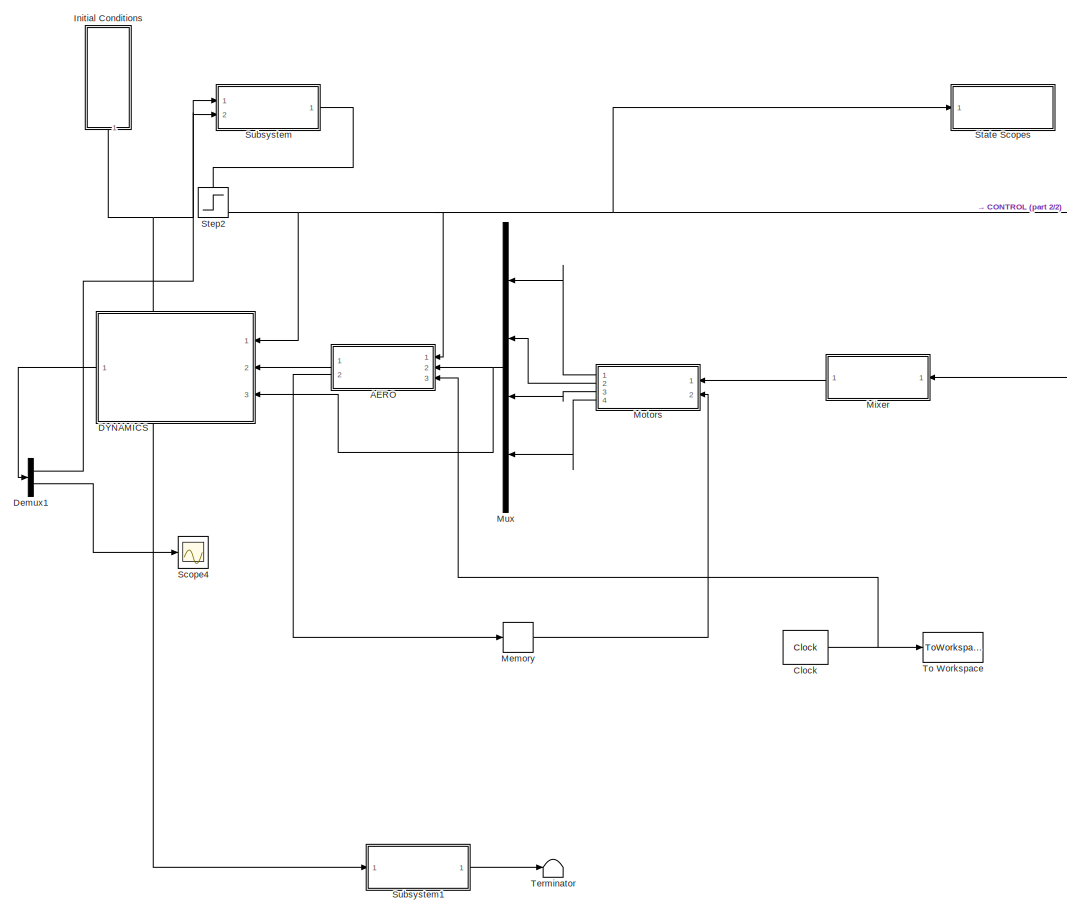
[diagram: root canvas - part 1/2, center side, full height]
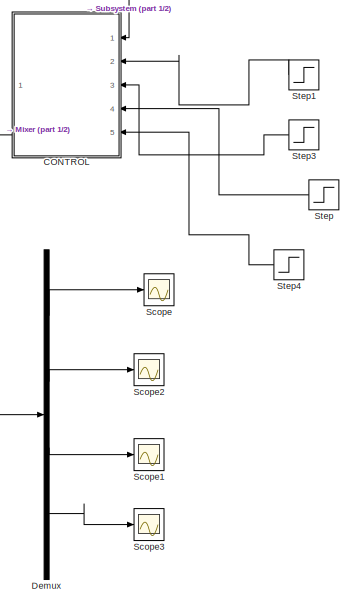
[diagram: root canvas - part 2/2, middle right region]
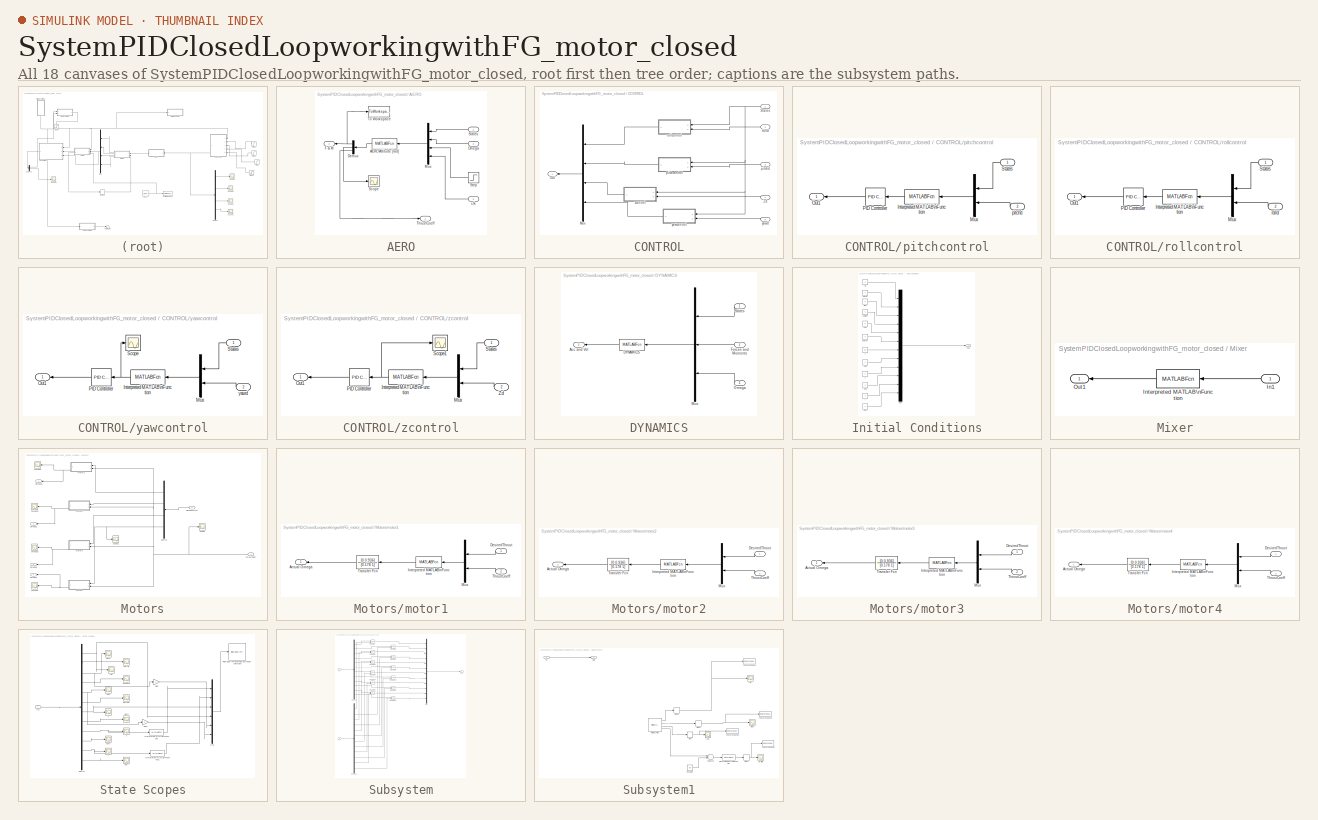
[diagram: thumbnail index - all 18 canvases of the model, root first then tree order]
MODEL SystemPIDClosedLoopworkingwithFG_motor_closed
KIND model
BLOCK [SubSystem] AERO
  FunctionWithSeparateData = off
  MaskHideContents = off
  MinAlgLoopOccurrences = off
  Opaque = off
  Ports = [3, 2]
  PropExecContextOutsideSubsystem = off
  RTWSystemCode = Auto
  RequestExecContextInheritance = off
  SID = 9
BLOCK [MATLABFcn] AERO/AERO Attitude [rad]
  MATLABFcn = aero
  OutputDimensions = 26
  Ports = [1, 1]
  SID = 17
BLOCK [Demux] AERO/Demux
  DisplayOption = bar
  Outputs = [24 1 1]
  Ports = [1, 3]
  SID = 403
BLOCK [Outport] AERO/F & M
  IconDisplay = Port number
  SID = 18
BLOCK [Mux] AERO/Mux
  DisplayOption = bar
  Ports = [4, 1]
  SID = 12
BLOCK [Inport] AERO/Omega
  IconDisplay = Port number
  Port = 2
  SID = 14
BLOCK [Scope] AERO/Scope
  DataFormat = StructureWithTime
  Floating = off
  LimitDataPoints = off
  NumInputPorts = 1
  Ports = [1]
  SID = 404
  SampleTime = 0
  SaveName = ScopeData5
BLOCK [Inport] AERO/States
  IconDisplay = Port number
  SID = 13
BLOCK [Step] AERO/Step
  After = 4
  Before = 4
  SID = 15
  SampleTime = 0
  Time = 0
BLOCK [Outport] AERO/ThrustCoeff
  IconDisplay = Port number
  Port = 2
  SID = 411
BLOCK [ToWorkspace] AERO/To Workspace
  MaxDataPoints = inf
  Ports = [1]
  SID = 330
  SampleTime = -1
  SaveFormat = Structure
  VariableName = FandM
BLOCK [Inport] AERO/clk
  IconDisplay = Port number
  Port = 3
  SID = 271
BLOCK [SubSystem] CONTROL
  AttributesFormatString = %<Priority>
  FunctionWithSeparateData = off
  MaskHideContents = off
  MinAlgLoopOccurrences = off
  Opaque = off
  Ports = [5, 1]
  PropExecContextOutsideSubsystem = off
  RTWSystemCode = Auto
  RequestExecContextInheritance = off
  SID = 29
BLOCK [Mux] CONTROL/Mux
  DisplayOption = bar
  Ports = [4, 1]
  SID = 102
BLOCK [Outport] CONTROL/Out
  IconDisplay = Port number
  SID = 101
BLOCK [Inport] CONTROL/States
  IconDisplay = Port number
  SID = 32
BLOCK [Inport] CONTROL/Zd
  IconDisplay = Port number
  Port = 4
  SID = 35
BLOCK [SubSystem] CONTROL/pitchcontrol
  FunctionWithSeparateData = off
  MaskHideContents = off
  MinAlgLoopOccurrences = off
  Opaque = off
  Ports = [2, 1]
  PropExecContextOutsideSubsystem = off
  RTWSystemCode = Auto
  RequestExecContextInheritance = off
  SID = 80
BLOCK [MATLABFcn] CONTROL/pitchcontrol/Interpreted MATLAB\nFunction
  MATLABFcn = pitcherr
  OutputDimensions = 1
  Ports = [1, 1]
  SID = 83
BLOCK [Mux] CONTROL/pitchcontrol/Mux
  DisplayOption = bar
  Inputs = 2
  Ports = [2, 1]
  SID = 84
BLOCK [Outport] CONTROL/pitchcontrol/Out1
  IconDisplay = Port number
  SID = 86
BLOCK [Reference] CONTROL/pitchcontrol/PID Controller  REF=simulink/Continuous/PID Controller
  AntiWindupMode = none
  Controller = PID
  D = 0.025
  DOutDataTypeStr = Inherit: Inherit via internal rule
  DOutMax = []
  DOutMin = []
  DParamDataTypeStr = Inherit: Inherit via internal rule
  DParamMax = []
  DParamMin = []
  ExternalReset = none
  FilterContinuousStateAttributes = ''
  FilterMethod = Forward Euler
  FilterOutDataTypeStr = Inherit: Inherit via internal rule
  FilterOutMax = []
  FilterOutMin = []
  FilterRTWStateStorageClass = Auto
  FilterStateMustResolveToSignalObject = off
  Form = Parallel
  FunctionWithSeparateData = off
  GeneratePreprocessorConditionals = off
  I = 0
  IOutDataTypeStr = Inherit: Inherit via internal rule
  IOutMax = []
  IOutMin = []
  IParamDataTypeStr = Inherit: Inherit via internal rule
  IParamMax = []
  IParamMin = []
  IgnoreLimit = off
  InitialConditionForFilter = 0
  InitialConditionForIntegrator = 0
  InitialConditionSource = internal
  IntegratorContinuousStateAttributes = ''
  IntegratorMethod = Forward Euler
  IntegratorOutDataTypeStr = Inherit: Inherit via internal rule
  IntegratorOutMax = []
  IntegratorOutMin = []
  IntegratorRTWStateStorageClass = Auto
  IntegratorStateMustResolveToSignalObject = off
  Kb = 1
  KbOutDataTypeStr = Inherit: Inherit via internal rule
  KbOutMax = []
  KbOutMin = []
  KbParamDataTypeStr = Inherit: Inherit via internal rule
  KbParamMax = []
  KbParamMin = []
  Kt = 1
  KtOutDataTypeStr = Inherit: Inherit via internal rule
  KtOutMax = []
  KtOutMin = []
  KtParamDataTypeStr = Inherit: Inherit via internal rule
  KtParamMax = []
  KtParamMin = []
  LimitOutput = off
  LinearizeAsGain = off
  LockScale = off
  LowerSaturationLimit = -inf
  N = 25
  NOutDataTypeStr = Inherit: Inherit via internal rule
  NOutMax = []
  NOutMin = []
  NParamDataTypeStr = Inherit: Inherit via internal rule
  NParamMax = []
  NParamMin = []
  P = 0.005
  POutDataTypeStr = Inherit: Inherit via internal rule
  POutMax = []
  POutMin = []
  PParamDataTypeStr = Inherit: Inherit via internal rule
  PParamMax = []
  PParamMin = []
  Ports = [1, 1]
  RTWMemSecDataConstants = Inherit from model
  RTWMemSecDataInternal = Inherit from model
  RTWMemSecDataParameters = Inherit from model
  RTWMemSecFuncExecute = Inherit from model
  RTWMemSecFuncInitTerm = Inherit from model
  RndMeth = Floor
  SID = 85
  SampleTime = 1
  SaturateOnIntegerOverflow = off
  SaturationOutDataTypeStr = Inherit: Same as input
  SaturationOutMax = []
  SaturationOutMin = []
  ShowPortLabels = FromPortIcon
  SourceBlock = simulink/Continuous/PID Controller
  SourceType = PID 1dof
  SumAccumDataTypeStr = Inherit: Inherit via internal rule
  SumDAccumDataTypeStr = Inherit: Inherit via internal rule
  SumDOutDataTypeStr = Inherit: Inherit via internal rule
  SumDOutMax = []
  SumDOutMin = []
  SumI1AccumDataTypeStr = Inherit: Inherit via internal rule
  SumI1OutDataTypeStr = Inherit: Inherit via internal rule
  SumI1OutMax = []
  SumI1OutMin = []
  SumI2AccumDataTypeStr = Inherit: Inherit via internal rule
  SumI2OutDataTypeStr = Inherit: Inherit via internal rule
  SumI2OutMax = []
  SumI2OutMin = []
  SumI3AccumDataTypeStr = Inherit: Inherit via internal rule
  SumI3OutDataTypeStr = Inherit: Inherit via internal rule
  SumI3OutMax = []
  SumI3OutMin = []
  SumOutDataTypeStr = Inherit: Inherit via internal rule
  SumOutMax = []
  SumOutMin = []
  SystemSampleTime = -1
  TimeDomain = Continuous-time
  TrackingMode = off
  UpperSaturationLimit = inf
  ZeroCross = on
BLOCK [Inport] CONTROL/pitchcontrol/States
  IconDisplay = Port number
  SID = 81
BLOCK [Inport] CONTROL/pitchcontrol/pitchd
  IconDisplay = Port number
  Port = 2
  SID = 82
BLOCK [Inport] CONTROL/pitchd
  IconDisplay = Port number
  Port = 3
  SID = 34
BLOCK [SubSystem] CONTROL/rollcontrol
  FunctionWithSeparateData = off
  MaskHideContents = off
  MinAlgLoopOccurrences = off
  Opaque = off
  Ports = [2, 1]
  PropExecContextOutsideSubsystem = off
  RTWSystemCode = Auto
  RequestExecContextInheritance = off
  SID = 73
BLOCK [MATLABFcn] CONTROL/rollcontrol/Interpreted MATLAB\nFunction
  MATLABFcn = rollerr
  OutputDimensions = 1
  Ports = [1, 1]
  SID = 77
BLOCK [Mux] CONTROL/rollcontrol/Mux
  DisplayOption = bar
  Inputs = 2
  Ports = [2, 1]
  SID = 78
BLOCK [Outport] CONTROL/rollcontrol/Out1
  IconDisplay = Port number
  SID = 75
BLOCK [Reference] CONTROL/rollcontrol/PID Controller  REF=simulink/Continuous/PID Controller
  AntiWindupMode = none
  Controller = PID
  D = .025
  DOutDataTypeStr = Inherit: Inherit via internal rule
  DOutMax = []
  DOutMin = []
  DParamDataTypeStr = Inherit: Inherit via internal rule
  DParamMax = []
  DParamMin = []
  ExternalReset = none
  FilterContinuousStateAttributes = ''
  FilterMethod = Forward Euler
  FilterOutDataTypeStr = Inherit: Inherit via internal rule
  FilterOutMax = []
  FilterOutMin = []
  FilterRTWStateStorageClass = Auto
  FilterStateMustResolveToSignalObject = off
  Form = Parallel
  FunctionWithSeparateData = off
  GeneratePreprocessorConditionals = off
  I = 0
  IOutDataTypeStr = Inherit: Inherit via internal rule
  IOutMax = []
  IOutMin = []
  IParamDataTypeStr = Inherit: Inherit via internal rule
  IParamMax = []
  IParamMin = []
  IgnoreLimit = off
  InitialConditionForFilter = 0
  InitialConditionForIntegrator = 0
  InitialConditionSource = internal
  IntegratorContinuousStateAttributes = ''
  IntegratorMethod = Forward Euler
  IntegratorOutDataTypeStr = Inherit: Inherit via internal rule
  IntegratorOutMax = []
  IntegratorOutMin = []
  IntegratorRTWStateStorageClass = Auto
  IntegratorStateMustResolveToSignalObject = off
  Kb = 1
  KbOutDataTypeStr = Inherit: Inherit via internal rule
  KbOutMax = []
  KbOutMin = []
  KbParamDataTypeStr = Inherit: Inherit via internal rule
  KbParamMax = []
  KbParamMin = []
  Kt = 1
  KtOutDataTypeStr = Inherit: Inherit via internal rule
  KtOutMax = []
  KtOutMin = []
  KtParamDataTypeStr = Inherit: Inherit via internal rule
  KtParamMax = []
  KtParamMin = []
  LimitOutput = off
  LinearizeAsGain = off
  LockScale = off
  LowerSaturationLimit = -inf
  N = 25
  NOutDataTypeStr = Inherit: Inherit via internal rule
  NOutMax = []
  NOutMin = []
  NParamDataTypeStr = Inherit: Inherit via internal rule
  NParamMax = []
  NParamMin = []
  P = .005
  POutDataTypeStr = Inherit: Inherit via internal rule
  POutMax = []
  POutMin = []
  PParamDataTypeStr = Inherit: Inherit via internal rule
  PParamMax = []
  PParamMin = []
  Ports = [1, 1]
  RTWMemSecDataConstants = Inherit from model
  RTWMemSecDataInternal = Inherit from model
  RTWMemSecDataParameters = Inherit from model
  RTWMemSecFuncExecute = Inherit from model
  RTWMemSecFuncInitTerm = Inherit from model
  RndMeth = Floor
  SID = 79
  SampleTime = 1
  SaturateOnIntegerOverflow = off
  SaturationOutDataTypeStr = Inherit: Same as input
  SaturationOutMax = []
  SaturationOutMin = []
  ShowPortLabels = FromPortIcon
  SourceBlock = simulink/Continuous/PID Controller
  SourceType = PID 1dof
  SumAccumDataTypeStr = Inherit: Inherit via internal rule
  SumDAccumDataTypeStr = Inherit: Inherit via internal rule
  SumDOutDataTypeStr = Inherit: Inherit via internal rule
  SumDOutMax = []
  SumDOutMin = []
  SumI1AccumDataTypeStr = Inherit: Inherit via internal rule
  SumI1OutDataTypeStr = Inherit: Inherit via internal rule
  SumI1OutMax = []
  SumI1OutMin = []
  SumI2AccumDataTypeStr = Inherit: Inherit via internal rule
  SumI2OutDataTypeStr = Inherit: Inherit via internal rule
  SumI2OutMax = []
  SumI2OutMin = []
  SumI3AccumDataTypeStr = Inherit: Inherit via internal rule
  SumI3OutDataTypeStr = Inherit: Inherit via internal rule
  SumI3OutMax = []
  SumI3OutMin = []
  SumOutDataTypeStr = Inherit: Inherit via internal rule
  SumOutMax = []
  SumOutMin = []
  SystemSampleTime = -1
  TimeDomain = Continuous-time
  TrackingMode = off
  UpperSaturationLimit = inf
  ZeroCross = on
BLOCK [Inport] CONTROL/rollcontrol/States
  IconDisplay = Port number
  SID = 74
BLOCK [Inport] CONTROL/rollcontrol/rolld
  IconDisplay = Port number
  Port = 2
  SID = 76
BLOCK [Inport] CONTROL/rolld
  IconDisplay = Port number
  Port = 2
  SID = 33
BLOCK [SubSystem] CONTROL/yawcontrol
  FunctionWithSeparateData = off
  MaskHideContents = off
  MinAlgLoopOccurrences = off
  Opaque = off
  Ports = [2, 1]
  PropExecContextOutsideSubsystem = off
  RTWSystemCode = Auto
  RequestExecContextInheritance = off
  SID = 87
BLOCK [MATLABFcn] CONTROL/yawcontrol/Interpreted MATLAB\nFunction
  MATLABFcn = yawerr
  OutputDimensions = 1
  Ports = [1, 1]
  SID = 90
BLOCK [Mux] CONTROL/yawcontrol/Mux
  DisplayOption = bar
  Inputs = 2
  Ports = [2, 1]
  SID = 91
BLOCK [Outport] CONTROL/yawcontrol/Out1
  IconDisplay = Port number
  SID = 93
BLOCK [Reference] CONTROL/yawcontrol/PID Controller  REF=simulink/Continuous/PID Controller
  AntiWindupMode = none
  Controller = PID
  D = 0.25
  DOutDataTypeStr = Inherit: Inherit via internal rule
  DOutMax = []
  DOutMin = []
  DParamDataTypeStr = Inherit: Inherit via internal rule
  DParamMax = []
  DParamMin = []
  ExternalReset = none
  FilterContinuousStateAttributes = ''
  FilterMethod = Forward Euler
  FilterOutDataTypeStr = Inherit: Inherit via internal rule
  FilterOutMax = []
  FilterOutMin = []
  FilterRTWStateStorageClass = Auto
  FilterStateMustResolveToSignalObject = off
  Form = Parallel
  FunctionWithSeparateData = off
  GeneratePreprocessorConditionals = off
  I = 0
  IOutDataTypeStr = Inherit: Inherit via internal rule
  IOutMax = []
  IOutMin = []
  IParamDataTypeStr = Inherit: Inherit via internal rule
  IParamMax = []
  IParamMin = []
  IgnoreLimit = off
  InitialConditionForFilter = 0
  InitialConditionForIntegrator = 0
  InitialConditionSource = internal
  IntegratorContinuousStateAttributes = ''
  IntegratorMethod = Forward Euler
  IntegratorOutDataTypeStr = Inherit: Inherit via internal rule
  IntegratorOutMax = []
  IntegratorOutMin = []
  IntegratorRTWStateStorageClass = Auto
  IntegratorStateMustResolveToSignalObject = off
  Kb = 1
  KbOutDataTypeStr = Inherit: Inherit via internal rule
  KbOutMax = []
  KbOutMin = []
  KbParamDataTypeStr = Inherit: Inherit via internal rule
  KbParamMax = []
  KbParamMin = []
  Kt = 1
  KtOutDataTypeStr = Inherit: Inherit via internal rule
  KtOutMax = []
  KtOutMin = []
  KtParamDataTypeStr = Inherit: Inherit via internal rule
  KtParamMax = []
  KtParamMin = []
  LimitOutput = off
  LinearizeAsGain = off
  LockScale = off
  LowerSaturationLimit = -inf
  N = 25
  NOutDataTypeStr = Inherit: Inherit via internal rule
  NOutMax = []
  NOutMin = []
  NParamDataTypeStr = Inherit: Inherit via internal rule
  NParamMax = []
  NParamMin = []
  P = 0.05
  POutDataTypeStr = Inherit: Inherit via internal rule
  POutMax = []
  POutMin = []
  PParamDataTypeStr = Inherit: Inherit via internal rule
  PParamMax = []
  PParamMin = []
  Ports = [1, 1]
  RTWMemSecDataConstants = Inherit from model
  RTWMemSecDataInternal = Inherit from model
  RTWMemSecDataParameters = Inherit from model
  RTWMemSecFuncExecute = Inherit from model
  RTWMemSecFuncInitTerm = Inherit from model
  RndMeth = Floor
  SID = 92
  SampleTime = 1
  SaturateOnIntegerOverflow = off
  SaturationOutDataTypeStr = Inherit: Same as input
  SaturationOutMax = []
  SaturationOutMin = []
  ShowPortLabels = FromPortIcon
  SourceBlock = simulink/Continuous/PID Controller
  SourceType = PID 1dof
  SumAccumDataTypeStr = Inherit: Inherit via internal rule
  SumDAccumDataTypeStr = Inherit: Inherit via internal rule
  SumDOutDataTypeStr = Inherit: Inherit via internal rule
  SumDOutMax = []
  SumDOutMin = []
  SumI1AccumDataTypeStr = Inherit: Inherit via internal rule
  SumI1OutDataTypeStr = Inherit: Inherit via internal rule
  SumI1OutMax = []
  SumI1OutMin = []
  SumI2AccumDataTypeStr = Inherit: Inherit via internal rule
  SumI2OutDataTypeStr = Inherit: Inherit via internal rule
  SumI2OutMax = []
  SumI2OutMin = []
  SumI3AccumDataTypeStr = Inherit: Inherit via internal rule
  SumI3OutDataTypeStr = Inherit: Inherit via internal rule
  SumI3OutMax = []
  SumI3OutMin = []
  SumOutDataTypeStr = Inherit: Inherit via internal rule
  SumOutMax = []
  SumOutMin = []
  SystemSampleTime = -1
  TimeDomain = Continuous-time
  TrackingMode = off
  UpperSaturationLimit = inf
  ZeroCross = on
BLOCK [Scope] CONTROL/yawcontrol/Scope
  DataFormat = StructureWithTime
  Floating = off
  NumInputPorts = 1
  Ports = [1]
  SID = 171
  SampleTime = 0
  SaveName = ScopeData17
BLOCK [Inport] CONTROL/yawcontrol/States
  IconDisplay = Port number
  SID = 88
BLOCK [Inport] CONTROL/yawcontrol/yawd
  IconDisplay = Port number
  Port = 2
  SID = 89
BLOCK [Inport] CONTROL/yawd
  IconDisplay = Port number
  Port = 5
  SID = 36
BLOCK [SubSystem] CONTROL/zcontrol
  FunctionWithSeparateData = off
  MaskHideContents = off
  MinAlgLoopOccurrences = off
  Opaque = off
  Ports = [2, 1]
  PropExecContextOutsideSubsystem = off
  RTWSystemCode = Auto
  RequestExecContextInheritance = off
  SID = 94
BLOCK [MATLABFcn] CONTROL/zcontrol/Interpreted MATLAB\nFunction
  MATLABFcn = zerr
  OutputDimensions = 1
  Ports = [1, 1]
  SID = 97
BLOCK [Mux] CONTROL/zcontrol/Mux
  DisplayOption = bar
  Inputs = 2
  Ports = [2, 1]
  SID = 98
BLOCK [Outport] CONTROL/zcontrol/Out1
  IconDisplay = Port number
  SID = 100
BLOCK [Reference] CONTROL/zcontrol/PID Controller  REF=simulink/Continuous/PID Controller
  AntiWindupMode = clamping
  Controller = PID
  D = 4
  DOutDataTypeStr = Inherit: Inherit via internal rule
  DOutMax = []
  DOutMin = []
  DParamDataTypeStr = Inherit: Inherit via internal rule
  DParamMax = []
  DParamMin = []
  ExternalReset = none
  FilterContinuousStateAttributes = ''
  FilterMethod = Forward Euler
  FilterOutDataTypeStr = Inherit: Inherit via internal rule
  FilterOutMax = []
  FilterOutMin = []
  FilterRTWStateStorageClass = Auto
  FilterStateMustResolveToSignalObject = off
  Form = Parallel
  FunctionWithSeparateData = off
  GeneratePreprocessorConditionals = off
  I = 2
  IOutDataTypeStr = Inherit: Inherit via internal rule
  IOutMax = []
  IOutMin = []
  IParamDataTypeStr = Inherit: Inherit via internal rule
  IParamMax = []
  IParamMin = []
  IgnoreLimit = off
  InitialConditionForFilter = 0
  InitialConditionForIntegrator = 0
  InitialConditionSource = internal
  IntegratorContinuousStateAttributes = ''
  IntegratorMethod = Forward Euler
  IntegratorOutDataTypeStr = Inherit: Inherit via internal rule
  IntegratorOutMax = []
  IntegratorOutMin = []
  IntegratorRTWStateStorageClass = Auto
  IntegratorStateMustResolveToSignalObject = off
  Kb = 1
  KbOutDataTypeStr = Inherit: Inherit via internal rule
  KbOutMax = []
  KbOutMin = []
  KbParamDataTypeStr = Inherit: Inherit via internal rule
  KbParamMax = []
  KbParamMin = []
  Kt = 1
  KtOutDataTypeStr = Inherit: Inherit via internal rule
  KtOutMax = []
  KtOutMin = []
  KtParamDataTypeStr = Inherit: Inherit via internal rule
  KtParamMax = []
  KtParamMin = []
  LimitOutput = off
  LinearizeAsGain = off
  LockScale = off
  LowerSaturationLimit = -100
  N = 25
  NOutDataTypeStr = Inherit: Inherit via internal rule
  NOutMax = []
  NOutMin = []
  NParamDataTypeStr = Inherit: Inherit via internal rule
  NParamMax = []
  NParamMin = []
  P = 5
  POutDataTypeStr = Inherit: Inherit via internal rule
  POutMax = []
  POutMin = []
  PParamDataTypeStr = Inherit: Inherit via internal rule
  PParamMax = []
  PParamMin = []
  Ports = [1, 1]
  RTWMemSecDataConstants = Inherit from model
  RTWMemSecDataInternal = Inherit from model
  RTWMemSecDataParameters = Inherit from model
  RTWMemSecFuncExecute = Inherit from model
  RTWMemSecFuncInitTerm = Inherit from model
  RndMeth = Floor
  SID = 99
  SampleTime = 1
  SaturateOnIntegerOverflow = off
  SaturationOutDataTypeStr = Inherit: Same as input
  SaturationOutMax = []
  SaturationOutMin = []
  ShowPortLabels = FromPortIcon
  SourceBlock = simulink/Continuous/PID Controller
  SourceType = PID 1dof
  SumAccumDataTypeStr = Inherit: Inherit via internal rule
  SumDAccumDataTypeStr = Inherit: Inherit via internal rule
  SumDOutDataTypeStr = Inherit: Inherit via internal rule
  SumDOutMax = []
  SumDOutMin = []
  SumI1AccumDataTypeStr = Inherit: Inherit via internal rule
  SumI1OutDataTypeStr = Inherit: Inherit via internal rule
  SumI1OutMax = []
  SumI1OutMin = []
  SumI2AccumDataTypeStr = Inherit: Inherit via internal rule
  SumI2OutDataTypeStr = Inherit: Inherit via internal rule
  SumI2OutMax = []
  SumI2OutMin = []
  SumI3AccumDataTypeStr = Inherit: Inherit via internal rule
  SumI3OutDataTypeStr = Inherit: Inherit via internal rule
  SumI3OutMax = []
  SumI3OutMin = []
  SumOutDataTypeStr = Inherit: Inherit via internal rule
  SumOutMax = []
  SumOutMin = []
  SystemSampleTime = -1
  TimeDomain = Continuous-time
  TrackingMode = off
  UpperSaturationLimit = 900
  ZeroCross = on
BLOCK [Scope] CONTROL/zcontrol/Scope1
  DataFormat = StructureWithTime
  Floating = off
  LimitDataPoints = off
  NumInputPorts = 1
  Ports = [1]
  SID = 429
  SampleTime = 0
  SaveName = ScopeData24
  YMax = 30
  YMin = -30
BLOCK [Inport] CONTROL/zcontrol/States
  IconDisplay = Port number
  SID = 95
BLOCK [Inport] CONTROL/zcontrol/Zd
  IconDisplay = Port number
  Port = 2
  SID = 96
BLOCK [Clock] Clock
  Decimation = 1
  DisplayTime = on
  SID = 269
BLOCK [SubSystem] DYNAMICS
  FunctionWithSeparateData = off
  MaskHideContents = off
  MinAlgLoopOccurrences = off
  Opaque = off
  Ports = [3, 1]
  PropExecContextOutsideSubsystem = off
  RTWSystemCode = Auto
  RequestExecContextInheritance = off
  SID = 1
BLOCK [Outport] DYNAMICS/Acc and Vel
  IconDisplay = Port number
  SID = 3
BLOCK [MATLABFcn] DYNAMICS/DYNAMICS
  MATLABFcn = plantdynamics
  OutputDimensions = 13
  Ports = [1, 1]
  SID = 8
BLOCK [Inport] DYNAMICS/Forces and Moments
  IconDisplay = Port number
  Port = 2
  SID = 6
BLOCK [Mux] DYNAMICS/Mux
  DisplayOption = bar
  Inputs = 3
  Ports = [3, 1]
  SID = 4
BLOCK [Inport] DYNAMICS/Omega
  IconDisplay = Port number
  Port = 3
  SID = 7
BLOCK [Inport] DYNAMICS/States
  IconDisplay = Port number
  SID = 5
BLOCK [Demux] Demux
  DisplayOption = bar
  Ports = [1, 4]
  SID = 113
BLOCK [Demux] Demux1
  DisplayOption = bar
  Outputs = [12 1]
  Ports = [1, 2]
  SID = 137
BLOCK [SubSystem] Initial Conditions
  FunctionWithSeparateData = off
  MaskHideContents = off
  MinAlgLoopOccurrences = off
  Opaque = off
  Ports = [0, 1]
  PropExecContextOutsideSubsystem = off
  RTWSystemCode = Auto
  RequestExecContextInheritance = off
  SID = 45
BLOCK [Mux] Initial Conditions/Mux
  DisplayOption = bar
  Inputs = 12
  Ports = [12, 1]
  SID = 48
BLOCK [Outport] Initial Conditions/Out1
  IconDisplay = Port number
  SID = 47
BLOCK [Constant] Initial Conditions/dotpitch
  SID = 53
  Value = 0
BLOCK [Constant] Initial Conditions/dotroll
  SID = 51
  Value = 0
BLOCK [Constant] Initial Conditions/dotx
  SID = 59
  Value = 0
BLOCK [Constant] Initial Conditions/doty
  SID = 50
  Value = 0
BLOCK [Constant] Initial Conditions/dotyaw
  SID = 55
  Value = 0
BLOCK [Constant] Initial Conditions/dotz
  SID = 57
  Value = 0
BLOCK [Constant] Initial Conditions/pitch
  SID = 52
  Value = 0
BLOCK [Constant] Initial Conditions/roll
  SID = 49
  Value = 0
BLOCK [Constant] Initial Conditions/x
  SID = 58
  Value = 0
BLOCK [Constant] Initial Conditions/y
  SID = 60
  Value = 0
BLOCK [Constant] Initial Conditions/yaw
  SID = 54
  Value = 0
BLOCK [Constant] Initial Conditions/z
  SID = 56
  Value = -45
BLOCK [Memory] Memory
  InheritSampleTime = on
  SID = 413
  X0 = 3.1751e-5
BLOCK [SubSystem] Mixer
  FunctionWithSeparateData = off
  MaskHideContents = off
  MinAlgLoopOccurrences = off
  Opaque = off
  Ports = [1, 1]
  PropExecContextOutsideSubsystem = off
  RTWSystemCode = Auto
  RequestExecContextInheritance = off
  SID = 103
BLOCK [Inport] Mixer/In1
  IconDisplay = Port number
  SID = 104
BLOCK [MATLABFcn] Mixer/Interpreted MATLAB\nFunction
  MATLABFcn = mix
  OutputDimensions = 4
  Ports = [1, 1]
  SID = 106
BLOCK [Outport] Mixer/Out1
  IconDisplay = Port number
  SID = 105
BLOCK [SubSystem] Motors
  FunctionWithSeparateData = off
  MaskHideContents = off
  MinAlgLoopOccurrences = off
  Opaque = off
  Ports = [2, 4]
  PropExecContextOutsideSubsystem = off
  RTWSystemCode = Auto
  RequestExecContextInheritance = off
  SID = 345
BLOCK [Demux] Motors/Demux
  DisplayOption = bar
  Ports = [1, 4]
  SID = 348
BLOCK [Inport] Motors/DesiredThrust
  IconDisplay = Port number
  SID = 346
BLOCK [Outport] Motors/Omega1
  IconDisplay = Port number
  SID = 424
BLOCK [Outport] Motors/Omega2
  IconDisplay = Port number
  Port = 2
  SID = 425
BLOCK [Outport] Motors/Omega3
  IconDisplay = Port number
  Port = 3
  SID = 426
BLOCK [Outport] Motors/Omega4
  IconDisplay = Port number
  Port = 4
  SID = 427
BLOCK [Scope] Motors/Scope
  DataFormat = StructureWithTime
  Floating = off
  LimitDataPoints = off
  NumInputPorts = 1
  Ports = [1]
  SID = 419
  SampleTime = 0
  SaveName = ScopeData7
BLOCK [Scope] Motors/Scope1
  DataFormat = StructureWithTime
  Floating = off
  LimitDataPoints = off
  NumInputPorts = 1
  Ports = [1]
  SID = 431
  SampleTime = 0
  SaveName = ScopeData26
BLOCK [Inport] Motors/ThrustCOeff
  IconDisplay = Port number
  Port = 2
  SID = 412
BLOCK [SubSystem] Motors/motor1
  FunctionWithSeparateData = off
  MaskHideContents = off
  MinAlgLoopOccurrences = off
  Opaque = off
  Ports = [2, 1]
  PropExecContextOutsideSubsystem = off
  RTWSystemCode = Auto
  RequestExecContextInheritance = off
  SID = 351
BLOCK [Outport] Motors/motor1/Actual Omega
  IconDisplay = Port number
  SID = 357
BLOCK [Inport] Motors/motor1/DesiredThrust
  IconDisplay = Port number
  SID = 353
BLOCK [MATLABFcn] Motors/motor1/Interpreted MATLAB\nFunction
  MATLABFcn = motor1
  Ports = [1, 1]
  SID = 355
BLOCK [Mux] Motors/motor1/Mux
  DisplayOption = bar
  Inputs = 2
  Ports = [2, 1]
  SID = 356
BLOCK [Inport] Motors/motor1/ThrustCoeff
  IconDisplay = Port number
  Port = 2
  SID = 414
BLOCK [TransferFcn] Motors/motor1/Transfer Fcn
  Denominator = [0.178 1]
  Numerator = [0 0.936]
  SID = 420
BLOCK [SubSystem] Motors/motor2
  FunctionWithSeparateData = off
  MaskHideContents = off
  MinAlgLoopOccurrences = off
  Opaque = off
  Ports = [2, 1]
  PropExecContextOutsideSubsystem = off
  RTWSystemCode = Auto
  RequestExecContextInheritance = off
  SID = 361
BLOCK [Outport] Motors/motor2/Actual Omega
  IconDisplay = Port number
  SID = 367
BLOCK [Inport] Motors/motor2/DesiredThrust
  IconDisplay = Port number
  SID = 362
BLOCK [MATLABFcn] Motors/motor2/Interpreted MATLAB\nFunction
  MATLABFcn = motor2
  Ports = [1, 1]
  SID = 365
BLOCK [Mux] Motors/motor2/Mux
  DisplayOption = bar
  Inputs = 2
  Ports = [2, 1]
  SID = 366
BLOCK [Inport] Motors/motor2/ThrustCoeff
  IconDisplay = Port number
  Port = 2
  SID = 363
BLOCK [TransferFcn] Motors/motor2/Transfer Fcn
  Denominator = [0.178 1]
  Numerator = [0 0.936]
  SID = 421
BLOCK [SubSystem] Motors/motor3
  FunctionWithSeparateData = off
  MaskHideContents = off
  MinAlgLoopOccurrences = off
  Opaque = off
  Ports = [2, 1]
  PropExecContextOutsideSubsystem = off
  RTWSystemCode = Auto
  RequestExecContextInheritance = off
  SID = 371
BLOCK [Outport] Motors/motor3/Actual Omega
  IconDisplay = Port number
  SID = 377
BLOCK [Inport] Motors/motor3/DesiredThrust
  IconDisplay = Port number
  SID = 372
BLOCK [MATLABFcn] Motors/motor3/Interpreted MATLAB\nFunction
  MATLABFcn = motor3
  Ports = [1, 1]
  SID = 375
BLOCK [Mux] Motors/motor3/Mux
  DisplayOption = bar
  Inputs = 2
  Ports = [2, 1]
  SID = 376
BLOCK [Inport] Motors/motor3/ThrustCoeff
  IconDisplay = Port number
  Port = 2
  SID = 373
BLOCK [TransferFcn] Motors/motor3/Transfer Fcn
  Denominator = [0.178 1]
  Numerator = [0 0.936]
  SID = 422
BLOCK [SubSystem] Motors/motor4
  FunctionWithSeparateData = off
  MaskHideContents = off
  MinAlgLoopOccurrences = off
  Opaque = off
  Ports = [2, 1]
  PropExecContextOutsideSubsystem = off
  RTWSystemCode = Auto
  RequestExecContextInheritance = off
  SID = 381
BLOCK [Outport] Motors/motor4/Actual Omega
  IconDisplay = Port number
  SID = 387
BLOCK [Inport] Motors/motor4/DesiredThrust
  IconDisplay = Port number
  SID = 382
BLOCK [MATLABFcn] Motors/motor4/Interpreted MATLAB\nFunction
  MATLABFcn = motor4
  Ports = [1, 1]
  SID = 385
BLOCK [Mux] Motors/motor4/Mux
  DisplayOption = bar
  Inputs = 2
  Ports = [2, 1]
  SID = 386
BLOCK [Inport] Motors/motor4/ThrustCoeff
  IconDisplay = Port number
  Port = 2
  SID = 383
BLOCK [TransferFcn] Motors/motor4/Transfer Fcn
  Denominator = [0.178 1]
  Numerator = [0 0.936]
  SID = 423
BLOCK [Scope] Motors/omega1
  DataFormat = StructureWithTime
  Floating = off
  LimitDataPoints = off
  NumInputPorts = 1
  Ports = [1]
  SID = 358
  SampleTime = 0
  SaveName = ScopeData9
  YMin = -1
BLOCK [Scope] Motors/omega2
  DataFormat = StructureWithTime
  Floating = off
  LimitDataPoints = off
  NumInputPorts = 1
  Ports = [1]
  SID = 368
  SampleTime = 0
  SaveName = ScopeData11
  YMax = 1
BLOCK [Scope] Motors/omega3
  DataFormat = StructureWithTime
  Floating = off
  LimitDataPoints = off
  NumInputPorts = 1
  Ports = [1]
  SID = 378
  SampleTime = 0
  SaveName = ScopeData18
  YMax = 1
BLOCK [Scope] Motors/omega4
  DataFormat = StructureWithTime
  Floating = off
  LimitDataPoints = off
  NumInputPorts = 1
  Ports = [1]
  SID = 388
  SampleTime = 0
  SaveName = ScopeData20
  YMax = 1
BLOCK [Mux] Mux
  DisplayOption = bar
  Ports = [4, 1]
  SID = 402
BLOCK [Scope] Scope
  DataFormat = StructureWithTime
  Floating = off
  LimitDataPoints = off
  NumInputPorts = 1
  Ports = [1]
  SID = 114
  SampleTime = 0
  YMax = -50
  YMin = -900
BLOCK [Scope] Scope1
  DataFormat = StructureWithTime
  Floating = off
  LimitDataPoints = off
  NumInputPorts = 1
  Ports = [1]
  SID = 115
  SampleTime = 0
  SaveName = ScopeData1
  YMax = 30
  YMin = -30
BLOCK [Scope] Scope2
  DataFormat = StructureWithTime
  Floating = off
  LimitDataPoints = off
  NumInputPorts = 1
  Ports = [1]
  SID = 116
  SampleTime = 0
  SaveName = ScopeData2
BLOCK [Scope] Scope3
  DataFormat = StructureWithTime
  Floating = off
  LimitDataPoints = off
  NumInputPorts = 1
  Ports = [1]
  SID = 117
  SampleTime = 0
  SaveName = ScopeData3
BLOCK [Scope] Scope4
  DataFormat = StructureWithTime
  Floating = off
  LimitDataPoints = off
  NumInputPorts = 1
  Ports = [1]
  SID = 138
  SampleTime = 0
  SaveName = ScopeData4
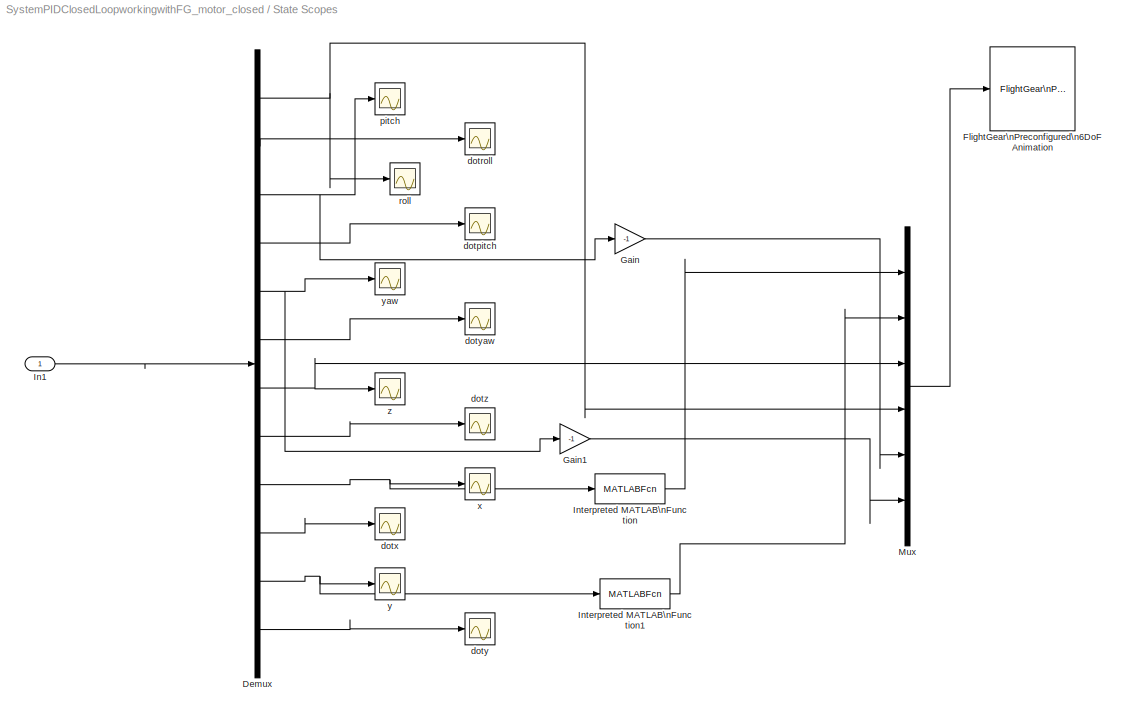
BLOCK [SubSystem] State Scopes
  FunctionWithSeparateData = off
  MaskHideContents = off
  MinAlgLoopOccurrences = off
  Opaque = off
  Ports = [1]
  PropExecContextOutsideSubsystem = off
  RTWSystemCode = Auto
  RequestExecContextInheritance = off
  SID = 146
BLOCK [Demux] State Scopes/Demux
  DisplayOption = bar
  Outputs = 12
  Ports = [1, 12]
  SID = 149
BLOCK [Reference] State Scopes/FlightGear\nPreconfigured\n6DoF Animation  REF=aerolibfltsims/FlightGear\nPreconfigured\n6DoF Animation
  AttributesFormatString = Version Selected: %<xFlightGearVersion>
  DestinationIpAddress = 127.0.0.1
  DestinationPort = 5502
  FunctionWithSeparateData = off
  GeneratePreprocessorConditionals = off
  Ports = [1]
  RTWMemSecDataConstants = Inherit from model
  RTWMemSecDataInternal = Inherit from model
  RTWMemSecDataParameters = Inherit from model
  RTWMemSecFuncExecute = Inherit from model
  RTWMemSecFuncInitTerm = Inherit from model
  SID = 280
  SampleTime = -1
  ShowPortLabels = FromPortIcon
  SourceBlock = aerolibfltsims/FlightGear\nPreconfigured\n6DoF Animation
  SourceType = FlightGearQuick6DoFAnimation
  SystemSampleTime = -1
  xFlightGearVersion = v0.9.8
BLOCK [Gain] State Scopes/Gain
  Gain = -1
  OutDataTypeStr = Inherit: Inherit via internal rule
  ParamDataTypeStr = Inherit: Inherit via internal rule
  SID = 328
  SaturateOnIntegerOverflow = off
BLOCK [Gain] State Scopes/Gain1
  Gain = -1
  OutDataTypeStr = Inherit: Inherit via internal rule
  ParamDataTypeStr = Inherit: Inherit via internal rule
  SID = 329
  SaturateOnIntegerOverflow = off
BLOCK [Inport] State Scopes/In1
  IconDisplay = Port number
  SID = 147
BLOCK [MATLABFcn] State Scopes/Interpreted MATLAB\nFunction
  MATLABFcn = xconversion
  Ports = [1, 1]
  SID = 275
BLOCK [MATLABFcn] State Scopes/Interpreted MATLAB\nFunction1
  MATLABFcn = yconversion
  Ports = [1, 1]
  SID = 277
BLOCK [Mux] State Scopes/Mux
  DisplayOption = bar
  Inputs = 6
  Ports = [6, 1]
  SID = 281
BLOCK [Scope] State Scopes/dotpitch
  DataFormat = StructureWithTime
  Floating = off
  NumInputPorts = 1
  Ports = [1]
  SID = 153
  SampleTime = 0
  SaveName = ScopeData8
BLOCK [Scope] State Scopes/dotroll
  DataFormat = StructureWithTime
  Floating = off
  NumInputPorts = 1
  Ports = [1]
  SID = 151
  SampleTime = 0
  SaveName = ScopeData6
BLOCK [Scope] State Scopes/dotx
  DataFormat = StructureWithTime
  Floating = off
  NumInputPorts = 1
  Ports = [1]
  SID = 159
  SampleTime = 0
  SaveName = ScopeData14
BLOCK [Scope] State Scopes/doty
  DataFormat = StructureWithTime
  Floating = off
  NumInputPorts = 1
  Ports = [1]
  SID = 161
  SampleTime = 0
  SaveName = ScopeData16
BLOCK [Scope] State Scopes/dotyaw
  DataFormat = StructureWithTime
  Floating = off
  NumInputPorts = 1
  Ports = [1]
  SID = 155
  SampleTime = 0
  SaveName = ScopeData10
BLOCK [Scope] State Scopes/dotz
  DataFormat = StructureWithTime
  Floating = off
  LimitDataPoints = off
  NumInputPorts = 1
  Ports = [1]
  SID = 157
  SampleTime = 0
  SaveName = ScopeData12
BLOCK [Scope] State Scopes/pitch
  DataFormat = Array
  Floating = off
  LimitDataPoints = off
  NumInputPorts = 1
  Ports = [1]
  SID = 152
  SampleTime = 0
  SaveName = sc_pitch
  YMax = 0.5
  YMin = -0.5
BLOCK [Scope] State Scopes/roll
  DataFormat = Array
  Floating = off
  LimitDataPoints = off
  NumInputPorts = 1
  Ports = [1]
  SID = 150
  SampleTime = 0
  SaveName = sc_roll
BLOCK [Scope] State Scopes/x
  DataFormat = StructureWithTime
  Floating = off
  LimitDataPoints = off
  NumInputPorts = 1
  Ports = [1]
  SID = 158
  SampleTime = 0
  SaveName = ScopeData13
BLOCK [Scope] State Scopes/y
  DataFormat = StructureWithTime
  Floating = off
  LimitDataPoints = off
  NumInputPorts = 1
  Ports = [1]
  SID = 160
  SampleTime = 0
  SaveName = ScopeData15
  TimeRange = 0.7999999999999972
  YMax = -454.8125
  YMin = -470.8125
BLOCK [Scope] State Scopes/yaw
  DataFormat = Array
  Floating = off
  LimitDataPoints = off
  NumInputPorts = 1
  Ports = [1]
  SID = 154
  SampleTime = 0
  SaveName = sc_yaw
  YMax = 0.1
  YMin = -0.5
BLOCK [Scope] State Scopes/z
  DataFormat = Array
  Floating = off
  LimitDataPoints = off
  NumInputPorts = 1
  Ports = [1]
  SID = 156
  SampleTime = 0
  SaveName = sc_z
  YMax = 3
  YMin = -3
BLOCK [Step] Step
  After = -46
  Before = -45
  SID = 268
  SampleTime = .001
  Time = 10
BLOCK [Step] Step1
  After = 0
  SID = 272
  SampleTime = .001
  Time = 10
BLOCK [Step] Step2
  IOType = siggen
  SID = 260
  SampleTime = 0
BLOCK [Step] Step3
  After = 0
  SID = 273
  SampleTime = .001
  Time = 10
BLOCK [Step] Step4
  After = 0
  SID = 274
  SampleTime = .001
  Time = 10
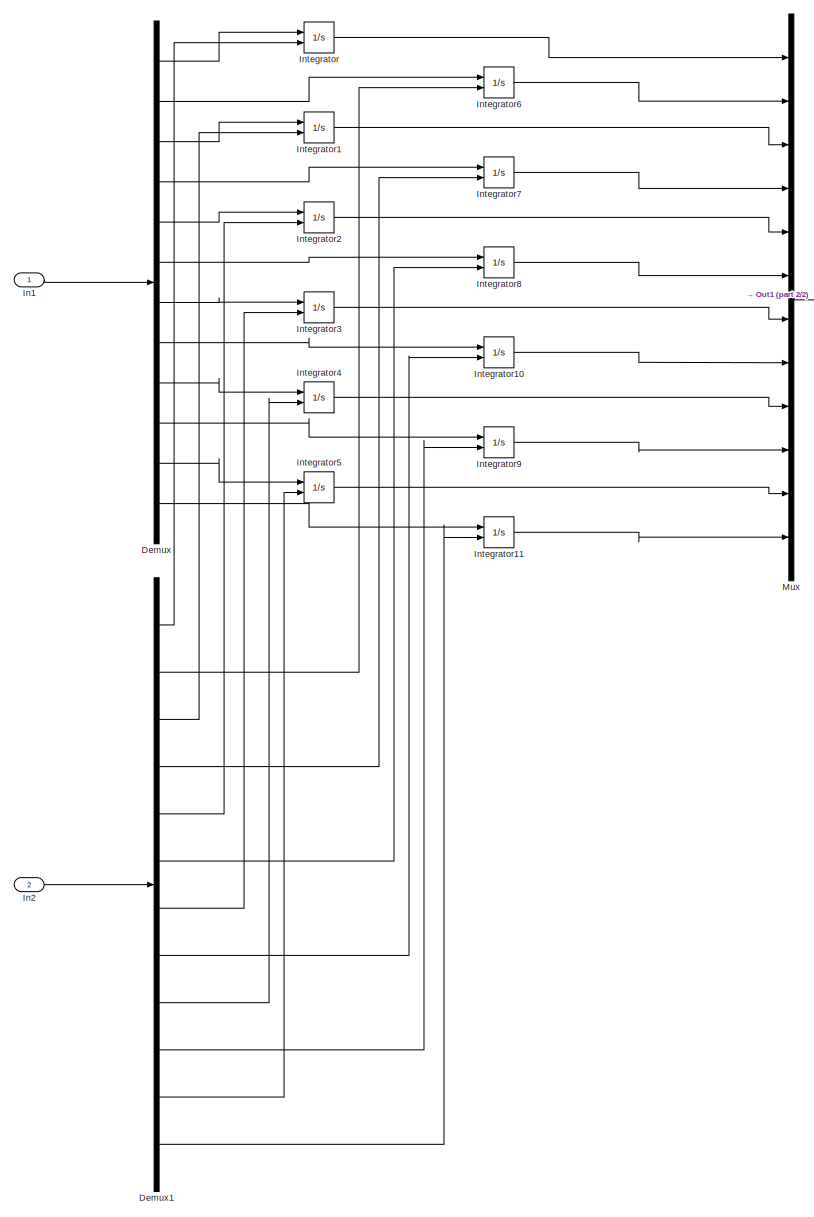
[diagram: Subsystem - part 1/2, center side, full height]
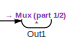
[diagram: Subsystem - part 2/2, top right region]
BLOCK [SubSystem] Subsystem
  FunctionWithSeparateData = off
  MaskHideContents = off
  MinAlgLoopOccurrences = off
  Opaque = off
  Ports = [2, 1]
  PropExecContextOutsideSubsystem = off
  RTWSystemCode = Auto
  RequestExecContextInheritance = off
  SID = 118
BLOCK [Demux] Subsystem/Demux
  DisplayOption = bar
  Outputs = 12
  Ports = [1, 12]
  SID = 122
BLOCK [Demux] Subsystem/Demux1
  DisplayOption = bar
  Outputs = 12
  Ports = [1, 12]
  SID = 123
BLOCK [Inport] Subsystem/In1
  IconDisplay = Port number
  SID = 119
BLOCK [Inport] Subsystem/In2
  IconDisplay = Port number
  Port = 2
  SID = 121
BLOCK [Integrator] Subsystem/Integrator
  InitialConditionSource = external
  Ports = [2, 1]
  SID = 124
BLOCK [Integrator] Subsystem/Integrator1
  InitialConditionSource = external
  Ports = [2, 1]
  SID = 125
BLOCK [Integrator] Subsystem/Integrator10
  InitialConditionSource = external
  Ports = [2, 1]
  SID = 134
BLOCK [Integrator] Subsystem/Integrator11
  InitialConditionSource = external
  Ports = [2, 1]
  SID = 135
BLOCK [Integrator] Subsystem/Integrator2
  InitialConditionSource = external
  Ports = [2, 1]
  SID = 126
BLOCK [Integrator] Subsystem/Integrator3
  InitialConditionSource = external
  Ports = [2, 1]
  SID = 127
BLOCK [Integrator] Subsystem/Integrator4
  InitialConditionSource = external
  Ports = [2, 1]
  SID = 128
BLOCK [Integrator] Subsystem/Integrator5
  InitialConditionSource = external
  Ports = [2, 1]
  SID = 129
BLOCK [Integrator] Subsystem/Integrator6
  InitialConditionSource = external
  Ports = [2, 1]
  SID = 130
BLOCK [Integrator] Subsystem/Integrator7
  InitialConditionSource = external
  Ports = [2, 1]
  SID = 131
BLOCK [Integrator] Subsystem/Integrator8
  InitialConditionSource = external
  Ports = [2, 1]
  SID = 132
BLOCK [Integrator] Subsystem/Integrator9
  InitialConditionSource = external
  Ports = [2, 1]
  SID = 133
BLOCK [Mux] Subsystem/Mux
  DisplayOption = bar
  Inputs = 12
  Ports = [12, 1]
  SID = 136
BLOCK [Outport] Subsystem/Out1
  IconDisplay = Port number
  SID = 120
BLOCK [SubSystem] Subsystem1
  FunctionWithSeparateData = off
  MaskHideContents = off
  MinAlgLoopOccurrences = off
  Opaque = off
  Ports = [1, 1]
  PropExecContextOutsideSubsystem = off
  RTWSystemCode = Auto
  RequestExecContextInheritance = off
  SID = 304
BLOCK [Constant] Subsystem1/Constant
  SID = 308
  Value = 0.5
BLOCK [Inport] Subsystem1/In1
  IconDisplay = Port number
  SID = 305
BLOCK [MATLABFcn] Subsystem1/Interpreted MATLAB\nFunction
  MATLABFcn = zjoystickerr
  Ports = [1, 1]
  SID = 309
BLOCK [Outport] Subsystem1/Out1
  IconDisplay = Port number
  SID = 306
BLOCK [Reference] Subsystem1/Pilot Joystick  REF=aerolibanimutils/Pilot Joystick
  JoystickID = Joystick1
  OutputConfiguration = FourAxis
  Ports = [0, 4]
  SID = 310
  SampleTime = .001
  SourceBlock = aerolibanimutils/Pilot Joystick
  SourceType = PilotJoystick
BLOCK [Signum] Subsystem1/Sign
  SID = 311
BLOCK [Signum] Subsystem1/Sign1
  SID = 312
BLOCK [Signum] Subsystem1/Sign2
  SID = 313
BLOCK [Signum] Subsystem1/Sign3
  SID = 314
BLOCK [Sum] Subsystem1/Subtract
  InputSameDT = off
  Inputs = +-
  OutDataTypeStr = Inherit: Inherit via internal rule
  Ports = [2, 1]
  SID = 315
  SaturateOnIntegerOverflow = off
BLOCK [ToWorkspace] Subsystem1/To Workspace1
  MaxDataPoints = 1
  Ports = [1]
  SID = 316
  SampleTime = -1
  SaveFormat = Structure
  VariableName = roll_joystick
BLOCK [ToWorkspace] Subsystem1/To Workspace2
  MaxDataPoints = 1
  Ports = [1]
  SID = 317
  SampleTime = -1
  SaveFormat = Structure
  VariableName = pitch_joystick
BLOCK [ToWorkspace] Subsystem1/To Workspace3
  MaxDataPoints = 1
  Ports = [1]
  SID = 318
  SampleTime = -1
  SaveFormat = Structure
  VariableName = yaw_joystick
BLOCK [ToWorkspace] Subsystem1/To Workspace4
  MaxDataPoints = 1
  Ports = [1]
  SID = 319
  SampleTime = -1
  SaveFormat = Structure
  VariableName = z_joystick
BLOCK [Scope] Subsystem1/pitch
  DataFormat = StructureWithTime
  Floating = off
  NumInputPorts = 1
  Ports = [1]
  SID = 320
  SampleTime = 0
  SaveName = ScopeData19
  YMax = 1.5
  YMin = -1.5
BLOCK [Scope] Subsystem1/roll
  DataFormat = StructureWithTime
  Floating = off
  NumInputPorts = 1
  Ports = [1]
  SID = 321
  SampleTime = 0
  SaveName = ScopeData21
  YMax = 1.5
  YMin = -1.5
BLOCK [Scope] Subsystem1/throttle
  DataFormat = StructureWithTime
  Floating = off
  NumInputPorts = 1
  Ports = [1]
  SID = 322
  SampleTime = 0
  SaveName = ScopeData22
  YMax = 1.5
  YMin = -1.5
BLOCK [Scope] Subsystem1/yaw
  DataFormat = StructureWithTime
  Floating = off
  NumInputPorts = 1
  Ports = [1]
  SID = 323
  SampleTime = 0
  SaveName = ScopeData23
  YMax = 1.5
  YMin = -1.5
BLOCK [Terminator] Terminator
  SID = 324
BLOCK [ToWorkspace] To Workspace
  MaxDataPoints = 1
  Ports = [1]
  SID = 270
  SampleTime = -1
  SaveFormat = Structure
  VariableName = simout
LINE AERO/AERO Attitude [rad]:1 -> AERO/Demux:1
NET AERO/Demux:1 -> AERO/F & M:1, AERO/To Workspace:1
LINE AERO/Demux:2 -> AERO/Scope:1
LINE AERO/Demux:3 -> AERO/ThrustCoeff:1
LINE AERO/Mux:1 -> AERO/AERO Attitude [rad]:1
LINE AERO/Omega:1 -> AERO/Mux:2
LINE AERO/States:1 -> AERO/Mux:1
LINE AERO/Step:1 -> AERO/Mux:3
LINE AERO/clk:1 -> AERO/Mux:4
LINE AERO:1 -> DYNAMICS:2
LINE AERO:2 -> Memory:1
LINE CONTROL/Mux:1 -> CONTROL/Out:1
NET CONTROL/States:1 -> CONTROL/pitchcontrol:1, CONTROL/rollcontrol:1, CONTROL/yawcontrol:1, CONTROL/zcontrol:1
LINE CONTROL/Zd:1 -> CONTROL/zcontrol:2
LINE CONTROL/pitchcontrol/Interpreted MATLAB\nFunction:1 -> CONTROL/pitchcontrol/PID Controller:1
LINE CONTROL/pitchcontrol/Mux:1 -> CONTROL/pitchcontrol/Interpreted MATLAB\nFunction:1
LINE CONTROL/pitchcontrol/PID Controller:1 -> CONTROL/pitchcontrol/Out1:1
LINE CONTROL/pitchcontrol/States:1 -> CONTROL/pitchcontrol/Mux:1
LINE CONTROL/pitchcontrol/pitchd:1 -> CONTROL/pitchcontrol/Mux:2
LINE CONTROL/pitchcontrol:1 -> CONTROL/Mux:2
LINE CONTROL/pitchd:1 -> CONTROL/pitchcontrol:2
LINE CONTROL/rollcontrol/Interpreted MATLAB\nFunction:1 -> CONTROL/rollcontrol/PID Controller:1
LINE CONTROL/rollcontrol/Mux:1 -> CONTROL/rollcontrol/Interpreted MATLAB\nFunction:1
LINE CONTROL/rollcontrol/PID Controller:1 -> CONTROL/rollcontrol/Out1:1
LINE CONTROL/rollcontrol/States:1 -> CONTROL/rollcontrol/Mux:1
LINE CONTROL/rollcontrol/rolld:1 -> CONTROL/rollcontrol/Mux:2
LINE CONTROL/rollcontrol:1 -> CONTROL/Mux:1
LINE CONTROL/rolld:1 -> CONTROL/rollcontrol:2
NET CONTROL/yawcontrol/Interpreted MATLAB\nFunction:1 -> CONTROL/yawcontrol/PID Controller:1, CONTROL/yawcontrol/Scope:1
LINE CONTROL/yawcontrol/Mux:1 -> CONTROL/yawcontrol/Interpreted MATLAB\nFunction:1
LINE CONTROL/yawcontrol/PID Controller:1 -> CONTROL/yawcontrol/Out1:1
LINE CONTROL/yawcontrol/States:1 -> CONTROL/yawcontrol/Mux:1
LINE CONTROL/yawcontrol/yawd:1 -> CONTROL/yawcontrol/Mux:2
LINE CONTROL/yawcontrol:1 -> CONTROL/Mux:4
LINE CONTROL/yawd:1 -> CONTROL/yawcontrol:2
NET CONTROL/zcontrol/Interpreted MATLAB\nFunction:1 -> CONTROL/zcontrol/PID Controller:1, CONTROL/zcontrol/Scope1:1
LINE CONTROL/zcontrol/Mux:1 -> CONTROL/zcontrol/Interpreted MATLAB\nFunction:1
LINE CONTROL/zcontrol/PID Controller:1 -> CONTROL/zcontrol/Out1:1
LINE CONTROL/zcontrol/States:1 -> CONTROL/zcontrol/Mux:1
LINE CONTROL/zcontrol/Zd:1 -> CONTROL/zcontrol/Mux:2
LINE CONTROL/zcontrol:1 -> CONTROL/Mux:3
NET CONTROL:1 -> Demux:1, Mixer:1
NET Clock:1 -> AERO:3, To Workspace:1
LINE DYNAMICS/DYNAMICS:1 -> DYNAMICS/Acc and Vel:1
LINE DYNAMICS/Forces and Moments:1 -> DYNAMICS/Mux:2
LINE DYNAMICS/Mux:1 -> DYNAMICS/DYNAMICS:1
LINE DYNAMICS/Omega:1 -> DYNAMICS/Mux:3
LINE DYNAMICS/States:1 -> DYNAMICS/Mux:1
LINE DYNAMICS:1 -> Demux1:1
LINE Demux1:1 -> Subsystem:1
LINE Demux1:2 -> Scope4:1
LINE Demux:1 -> Scope:1
LINE Demux:2 -> Scope2:1
LINE Demux:3 -> Scope1:1
LINE Demux:4 -> Scope3:1
LINE Initial Conditions/Mux:1 -> Initial Conditions/Out1:1
LINE Initial Conditions/dotpitch:1 -> Initial Conditions/Mux:4
LINE Initial Conditions/dotroll:1 -> Initial Conditions/Mux:2
LINE Initial Conditions/dotx:1 -> Initial Conditions/Mux:10
LINE Initial Conditions/doty:1 -> Initial Conditions/Mux:12
LINE Initial Conditions/dotyaw:1 -> Initial Conditions/Mux:6
LINE Initial Conditions/dotz:1 -> Initial Conditions/Mux:8
LINE Initial Conditions/pitch:1 -> Initial Conditions/Mux:3
LINE Initial Conditions/roll:1 -> Initial Conditions/Mux:1
LINE Initial Conditions/x:1 -> Initial Conditions/Mux:9
LINE Initial Conditions/y:1 -> Initial Conditions/Mux:11
LINE Initial Conditions/yaw:1 -> Initial Conditions/Mux:5
LINE Initial Conditions/z:1 -> Initial Conditions/Mux:7
NET Initial Conditions:1 -> Subsystem1:1, Subsystem:2
LINE Memory:1 -> Motors:2
LINE Mixer/In1:1 -> Mixer/Interpreted MATLAB\nFunction:1
LINE Mixer/Interpreted MATLAB\nFunction:1 -> Mixer/Out1:1
LINE Mixer:1 -> Motors:1
LINE Motors/Demux:1 -> Motors/motor1:1
LINE Motors/Demux:2 -> Motors/motor2:1
LINE Motors/Demux:3 -> Motors/motor3:1
NET Motors/Demux:4 -> Motors/Scope1:1, Motors/motor4:1
LINE Motors/DesiredThrust:1 -> Motors/Demux:1
NET Motors/ThrustCOeff:1 -> Motors/Scope:1, Motors/motor1:2, Motors/motor2:2, Motors/motor3:2, Motors/motor4:2
LINE Motors/motor1/DesiredThrust:1 -> Motors/motor1/Mux:1
LINE Motors/motor1/Interpreted MATLAB\nFunction:1 -> Motors/motor1/Transfer Fcn:1
LINE Motors/motor1/Mux:1 -> Motors/motor1/Interpreted MATLAB\nFunction:1
LINE Motors/motor1/ThrustCoeff:1 -> Motors/motor1/Mux:2
LINE Motors/motor1/Transfer Fcn:1 -> Motors/motor1/Actual Omega:1
NET Motors/motor1:1 -> Motors/Omega1:1, Motors/omega1:1
LINE Motors/motor2/DesiredThrust:1 -> Motors/motor2/Mux:1
LINE Motors/motor2/Interpreted MATLAB\nFunction:1 -> Motors/motor2/Transfer Fcn:1
LINE Motors/motor2/Mux:1 -> Motors/motor2/Interpreted MATLAB\nFunction:1
LINE Motors/motor2/ThrustCoeff:1 -> Motors/motor2/Mux:2
LINE Motors/motor2/Transfer Fcn:1 -> Motors/motor2/Actual Omega:1
NET Motors/motor2:1 -> Motors/Omega2:1, Motors/omega2:1
LINE Motors/motor3/DesiredThrust:1 -> Motors/motor3/Mux:1
LINE Motors/motor3/Interpreted MATLAB\nFunction:1 -> Motors/motor3/Transfer Fcn:1
LINE Motors/motor3/Mux:1 -> Motors/motor3/Interpreted MATLAB\nFunction:1
LINE Motors/motor3/ThrustCoeff:1 -> Motors/motor3/Mux:2
LINE Motors/motor3/Transfer Fcn:1 -> Motors/motor3/Actual Omega:1
NET Motors/motor3:1 -> Motors/Omega3:1, Motors/omega3:1
LINE Motors/motor4/DesiredThrust:1 -> Motors/motor4/Mux:1
LINE Motors/motor4/Interpreted MATLAB\nFunction:1 -> Motors/motor4/Transfer Fcn:1
LINE Motors/motor4/Mux:1 -> Motors/motor4/Interpreted MATLAB\nFunction:1
LINE Motors/motor4/ThrustCoeff:1 -> Motors/motor4/Mux:2
LINE Motors/motor4/Transfer Fcn:1 -> Motors/motor4/Actual Omega:1
NET Motors/motor4:1 -> Motors/Omega4:1, Motors/omega4:1
LINE Motors:1 -> Mux:1
LINE Motors:2 -> Mux:2
LINE Motors:3 -> Mux:3
LINE Motors:4 -> Mux:4
NET Mux:1 -> AERO:2, DYNAMICS:3
NET State Scopes/Demux:1 -> State Scopes/Mux:4, State Scopes/roll:1
LINE State Scopes/Demux:10 -> State Scopes/dotx:1
NET State Scopes/Demux:11 -> State Scopes/Interpreted MATLAB\nFunction1:1, State Scopes/y:1
LINE State Scopes/Demux:12 -> State Scopes/doty:1
LINE State Scopes/Demux:2 -> State Scopes/dotroll:1
NET State Scopes/Demux:3 -> State Scopes/Gain:1, State Scopes/pitch:1
LINE State Scopes/Demux:4 -> State Scopes/dotpitch:1
NET State Scopes/Demux:5 -> State Scopes/Gain1:1, State Scopes/yaw:1
LINE State Scopes/Demux:6 -> State Scopes/dotyaw:1
NET State Scopes/Demux:7 -> State Scopes/Mux:3, State Scopes/z:1
LINE State Scopes/Demux:8 -> State Scopes/dotz:1
NET State Scopes/Demux:9 -> State Scopes/Interpreted MATLAB\nFunction:1, State Scopes/x:1
LINE State Scopes/Gain1:1 -> State Scopes/Mux:6
LINE State Scopes/Gain:1 -> State Scopes/Mux:5
LINE State Scopes/In1:1 -> State Scopes/Demux:1
LINE State Scopes/Interpreted MATLAB\nFunction1:1 -> State Scopes/Mux:2
LINE State Scopes/Interpreted MATLAB\nFunction:1 -> State Scopes/Mux:1
LINE State Scopes/Mux:1 -> State Scopes/FlightGear\nPreconfigured\n6DoF Animation:1
LINE Step1:1 -> CONTROL:2
LINE Step3:1 -> CONTROL:3
LINE Step4:1 -> CONTROL:5
LINE Step:1 -> CONTROL:4
LINE Subsystem/Demux1:1 -> Subsystem/Integrator:2
LINE Subsystem/Demux1:10 -> Subsystem/Integrator9:2
LINE Subsystem/Demux1:11 -> Subsystem/Integrator5:2
LINE Subsystem/Demux1:12 -> Subsystem/Integrator11:2
LINE Subsystem/Demux1:2 -> Subsystem/Integrator6:2
LINE Subsystem/Demux1:3 -> Subsystem/Integrator1:2
LINE Subsystem/Demux1:4 -> Subsystem/Integrator7:2
LINE Subsystem/Demux1:5 -> Subsystem/Integrator2:2
LINE Subsystem/Demux1:6 -> Subsystem/Integrator8:2
LINE Subsystem/Demux1:7 -> Subsystem/Integrator3:2
LINE Subsystem/Demux1:8 -> Subsystem/Integrator10:2
LINE Subsystem/Demux1:9 -> Subsystem/Integrator4:2
LINE Subsystem/Demux:1 -> Subsystem/Integrator:1
LINE Subsystem/Demux:10 -> Subsystem/Integrator9:1
LINE Subsystem/Demux:11 -> Subsystem/Integrator5:1
LINE Subsystem/Demux:12 -> Subsystem/Integrator11:1
LINE Subsystem/Demux:2 -> Subsystem/Integrator6:1
LINE Subsystem/Demux:3 -> Subsystem/Integrator1:1
LINE Subsystem/Demux:4 -> Subsystem/Integrator7:1
LINE Subsystem/Demux:5 -> Subsystem/Integrator2:1
LINE Subsystem/Demux:6 -> Subsystem/Integrator8:1
LINE Subsystem/Demux:7 -> Subsystem/Integrator3:1
LINE Subsystem/Demux:8 -> Subsystem/Integrator10:1
LINE Subsystem/Demux:9 -> Subsystem/Integrator4:1
LINE Subsystem/In1:1 -> Subsystem/Demux:1
LINE Subsystem/In2:1 -> Subsystem/Demux1:1
LINE Subsystem/Integrator10:1 -> Subsystem/Mux:8
LINE Subsystem/Integrator11:1 -> Subsystem/Mux:12
LINE Subsystem/Integrator1:1 -> Subsystem/Mux:3
LINE Subsystem/Integrator2:1 -> Subsystem/Mux:5
LINE Subsystem/Integrator3:1 -> Subsystem/Mux:7
LINE Subsystem/Integrator4:1 -> Subsystem/Mux:9
LINE Subsystem/Integrator5:1 -> Subsystem/Mux:11
LINE Subsystem/Integrator6:1 -> Subsystem/Mux:2
LINE Subsystem/Integrator7:1 -> Subsystem/Mux:4
LINE Subsystem/Integrator8:1 -> Subsystem/Mux:6
LINE Subsystem/Integrator9:1 -> Subsystem/Mux:10
LINE Subsystem/Integrator:1 -> Subsystem/Mux:1
LINE Subsystem/Mux:1 -> Subsystem/Out1:1
LINE Subsystem1/Constant:1 -> Subsystem1/Subtract:2
LINE Subsystem1/In1:1 -> Subsystem1/Out1:1
LINE Subsystem1/Interpreted MATLAB\nFunction:1 -> Subsystem1/Sign1:1
LINE Subsystem1/Pilot Joystick:1 -> Subsystem1/Sign2:1
LINE Subsystem1/Pilot Joystick:2 -> Subsystem1/Sign3:1
LINE Subsystem1/Pilot Joystick:3 -> Subsystem1/Sign:1
LINE Subsystem1/Pilot Joystick:4 -> Subsystem1/Subtract:1
NET Subsystem1/Sign1:1 -> Subsystem1/To Workspace4:1, Subsystem1/throttle:1
NET Subsystem1/Sign2:1 -> Subsystem1/To Workspace1:1, Subsystem1/roll:1
NET Subsystem1/Sign3:1 -> Subsystem1/To Workspace2:1, Subsystem1/pitch:1
NET Subsystem1/Sign:1 -> Subsystem1/To Workspace3:1, Subsystem1/yaw:1
LINE Subsystem1/Subtract:1 -> Subsystem1/Interpreted MATLAB\nFunction:1
LINE Subsystem1:1 -> Terminator:1
NET Subsystem:1 -> AERO:1, CONTROL:1, DYNAMICS:1, State Scopes:1
note: NET lines group one-source signal fan-out (src -> all destinations, sorted); 1:1 wires keep LINE
